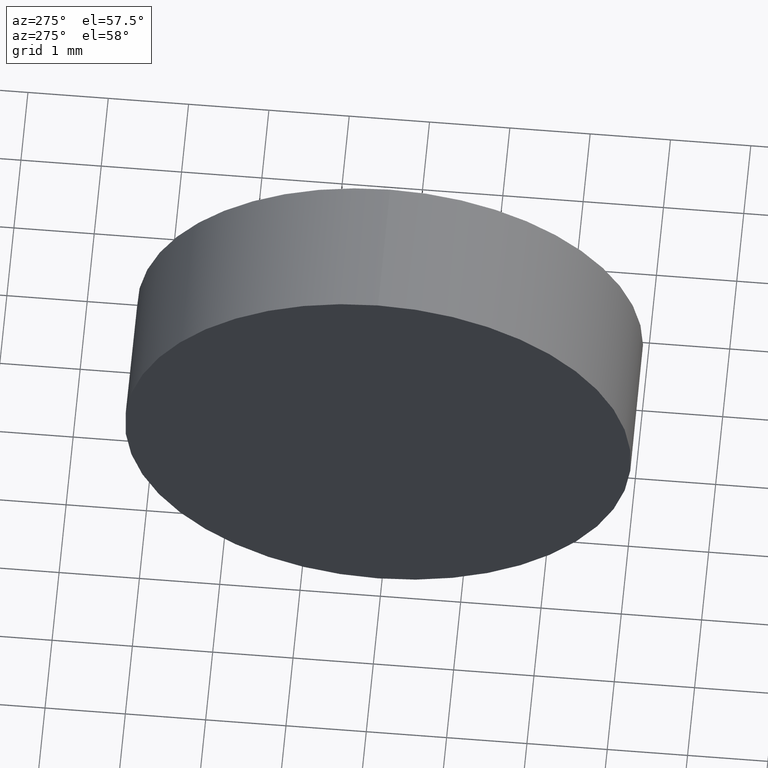
[diagram: clean part render]
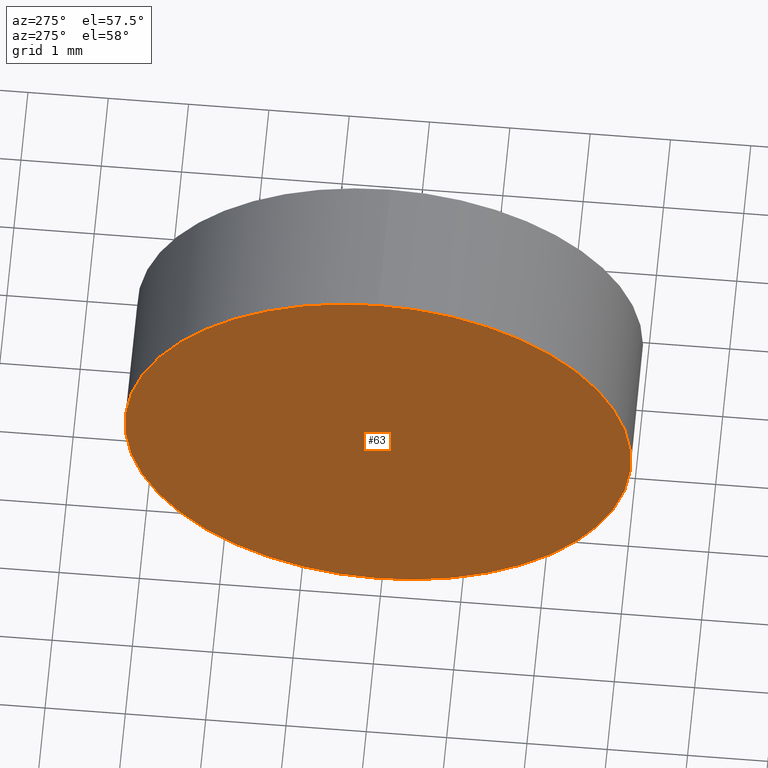
[diagram: same view with one face highlighted and labeled with its STEP entity id]
A machine part, auxiliary view. The second image highlights one B-rep face of the part: STEP entity #63.
In plain terms, the highlighted planar face has unit normal (1, 0, 0).
Its self-contained STEP definition (entity closure, byte-faithful):
#2 = CIRCLE ( 'NONE', #165, 3.150000000000001700 ) ;
#20 = EDGE_CURVE ( 'NONE', #152, #137, #70, .T. ) ;
#38 = DIRECTION ( 'NONE',  ( 0.0000000000000000000, 0.0000000000000000000, 1.000000000000000000 ) ) ;
#42 = DIRECTION ( 'NONE',  ( 0.0000000000000000000, 0.0000000000000000000, 1.000000000000000000 ) ) ;
#63 = ADVANCED_FACE ( 'NONE', ( #113 ), #145, .F. ) ;
#65 = CARTESIAN_POINT ( 'NONE',  ( 22.17218947520228100, 13.04452057459747900, 3.150000000000001700 ) ) ;
#68 = CARTESIAN_POINT ( 'NONE',  ( 22.17218947520228100, 13.04452057459747900, 0.0000000000000000000 ) ) ;
#70 = CIRCLE ( 'NONE', #156, 3.150000000000001700 ) ;
#72 = EDGE_CURVE ( 'NONE', #137, #152, #2, .T. ) ;
#93 = CARTESIAN_POINT ( 'NONE',  ( 22.17218947520228100, 13.04452057459747900, 0.0000000000000000000 ) ) ;
#95 = DIRECTION ( 'NONE',  ( 1.000000000000000000, 0.0000000000000000000, 0.0000000000000000000 ) ) ;
#100 = EDGE_LOOP ( 'NONE', ( #130, #117 ) ) ;
#113 = FACE_OUTER_BOUND ( 'NONE', #100, .T. ) ;
#117 = ORIENTED_EDGE ( 'NONE', *, *, #72, .T. ) ;
#125 = CARTESIAN_POINT ( 'NONE',  ( 22.17218947520228100, 13.04452057459747900, 0.0000000000000000000 ) ) ;
#129 = AXIS2_PLACEMENT_3D ( 'NONE', #93, #95, #175 ) ;
#130 = ORIENTED_EDGE ( 'NONE', *, *, #20, .T. ) ;
#137 = VERTEX_POINT ( 'NONE', #184 ) ;
#145 = PLANE ( 'NONE',  #129 ) ;
#152 = VERTEX_POINT ( 'NONE', #65 ) ;
#156 = AXIS2_PLACEMENT_3D ( 'NONE', #125, #158, #42 ) ;
#158 = DIRECTION ( 'NONE',  ( -1.000000000000000000, -0.0000000000000000000, -0.0000000000000000000 ) ) ;
#165 = AXIS2_PLACEMENT_3D ( 'NONE', #68, #186, #38 ) ;
#175 = DIRECTION ( 'NONE',  ( 0.0000000000000000000, 0.0000000000000000000, -1.000000000000000000 ) ) ;
#184 = CARTESIAN_POINT ( 'NONE',  ( 22.17218947520228100, 13.04452057459747900, -3.150000000000001700 ) ) ;
#186 = DIRECTION ( 'NONE',  ( -1.000000000000000000, -0.0000000000000000000, -0.0000000000000000000 ) ) ;